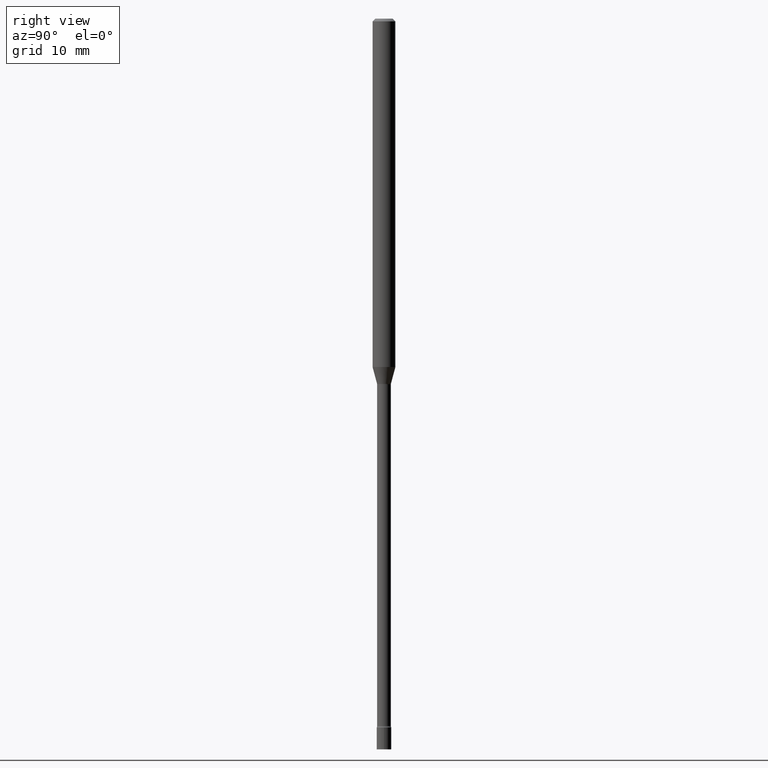
[diagram: clean part render]
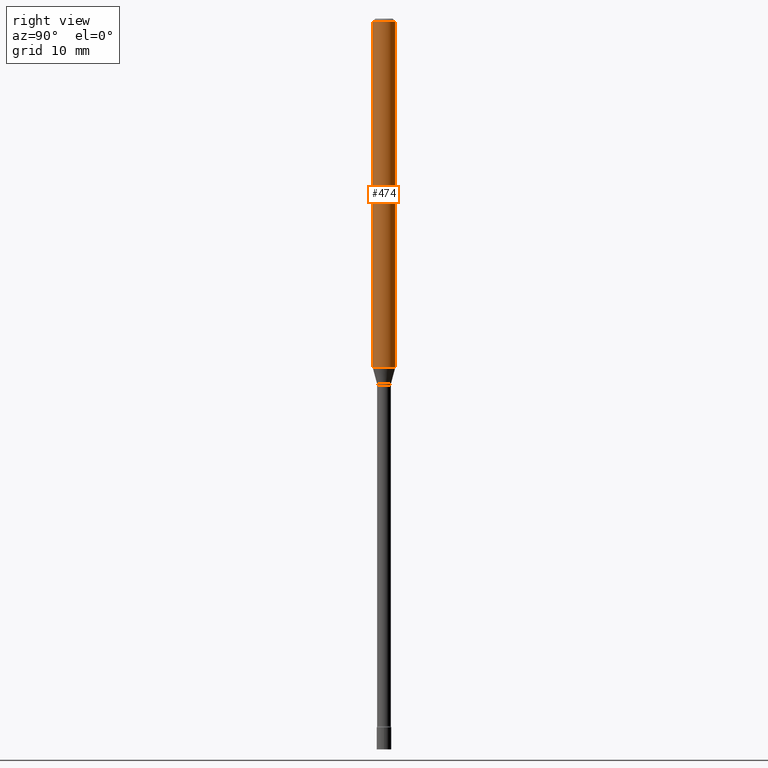
[diagram: same view with one face highlighted and labeled with its STEP entity id]
A machine part, right view. The second image highlights one B-rep face of the part: STEP entity #474.
In plain terms, the highlighted cylindrical surface (edge-blend (fillet) strip) has radius 1.5875 mm, axis along (-0, 0, 1).
Its self-contained STEP definition (entity closure, byte-faithful):
#23 = DIRECTION ( 'NONE',  ( -2.445467241242069311E-29, 3.491483579930688939E-15, 1.000000000000000000 ) ) ;
#26 = DIRECTION ( 'NONE',  ( -2.445467241242069311E-29, 3.491483579930689334E-15, 1.000000000000000000 ) ) ;
#34 = CARTESIAN_POINT ( 'NONE',  ( 3.668200861863111078E-31, -5.237225369896044256E-17, -0.01500000000000003067 ) ) ;
#106 = CARTESIAN_POINT ( 'NONE',  ( 4.440892098500625669E-16, 0.06250000000000000000, -2.182177237456680587E-16 ) ) ;
#110 = EDGE_CURVE ( 'NONE', #189, #425, #342, .T. ) ;
#112 = EDGE_CURVE ( 'NONE', #247, #425, #309, .T. ) ;
#128 = CARTESIAN_POINT ( 'NONE',  ( -4.364351673553912750E-16, -0.06250000000000005551, -0.01499999999999981209 ) ) ;
#130 = ORIENTED_EDGE ( 'NONE', *, *, #112, .F. ) ;
#138 = AXIS2_PLACEMENT_3D ( 'NONE', #180, #23, #265 ) ;
#180 = CARTESIAN_POINT ( 'NONE',  ( 4.663681943469377038E-29, -6.658510346420442801E-15, -1.907071934891535037 ) ) ;
#181 = EDGE_LOOP ( 'NONE', ( #377, #412, #130, #407 ) ) ;
#187 = AXIS2_PLACEMENT_3D ( 'NONE', #416, #227, #264 ) ;
#189 = VERTEX_POINT ( 'NONE', #322 ) ;
#190 = EDGE_CURVE ( 'NONE', #355, #247, #320, .T. ) ;
#197 = EDGE_CURVE ( 'NONE', #355, #189, #501, .T. ) ;
#227 = DIRECTION ( 'NONE',  ( -2.445467241242069311E-29, 3.491483579930688939E-15, 1.000000000000000000 ) ) ;
#244 = CARTESIAN_POINT ( 'NONE',  ( -4.364351673553916201E-16, -0.06250000000000000000, 2.182177237456680587E-16 ) ) ;
#247 = VERTEX_POINT ( 'NONE', #128 ) ;
#264 = DIRECTION ( 'NONE',  ( -6.982962677686265922E-15, -1.000000000000000000, 3.491483579930688939E-15 ) ) ;
#265 = DIRECTION ( 'NONE',  ( -6.982962677686265922E-15, -1.000000000000000000, 4.370956789862821150E-15 ) ) ;
#288 = AXIS2_PLACEMENT_3D ( 'NONE', #34, #443, #491 ) ;
#306 = DIRECTION ( 'NONE',  ( -2.445467241242069311E-29, 3.491483579930689334E-15, 1.000000000000000000 ) ) ;
#309 = CIRCLE ( 'NONE', #288, 0.06250000000000000000 ) ;
#317 = VECTOR ( 'NONE', #26, 39.37007874015748143 ) ;
#320 = LINE ( 'NONE', #244, #317 ) ;
#322 = CARTESIAN_POINT ( 'NONE',  ( 4.440892098501088631E-16, 0.06249999999999330397, -1.907071934891535259 ) ) ;
#334 = CARTESIAN_POINT ( 'NONE',  ( 4.440892098501094548E-16, 0.06249999999999995143, -0.01500000000000024751 ) ) ;
#342 = LINE ( 'NONE', #106, #484 ) ;
#355 = VERTEX_POINT ( 'NONE', #405 ) ;
#377 = ORIENTED_EDGE ( 'NONE', *, *, #197, .T. ) ;
#405 = CARTESIAN_POINT ( 'NONE',  ( -4.364351673553452745E-16, -0.06250000000000668909, -1.907071934891534815 ) ) ;
#407 = ORIENTED_EDGE ( 'NONE', *, *, #190, .F. ) ;
#412 = ORIENTED_EDGE ( 'NONE', *, *, #110, .T. ) ;
#416 = CARTESIAN_POINT ( 'NONE',  ( 0.000000000000000000, 0.000000000000000000, 0.000000000000000000 ) ) ;
#425 = VERTEX_POINT ( 'NONE', #334 ) ;
#443 = DIRECTION ( 'NONE',  ( -2.445467241242069311E-29, 3.491483579930688939E-15, 1.000000000000000000 ) ) ;
#474 = ADVANCED_FACE ( 'NONE', ( #489 ), #493, .T. ) ;
#484 = VECTOR ( 'NONE', #306, 39.37007874015748143 ) ;
#489 = FACE_OUTER_BOUND ( 'NONE', #181, .T. ) ;
#491 = DIRECTION ( 'NONE',  ( -6.982962677686265922E-15, -1.000000000000000000, 3.483106191921935554E-15 ) ) ;
#493 = CYLINDRICAL_SURFACE ( 'NONE', #187, 0.06250000000000000000 ) ;
#501 = CIRCLE ( 'NONE', #138, 0.06250000000000000000 ) ;